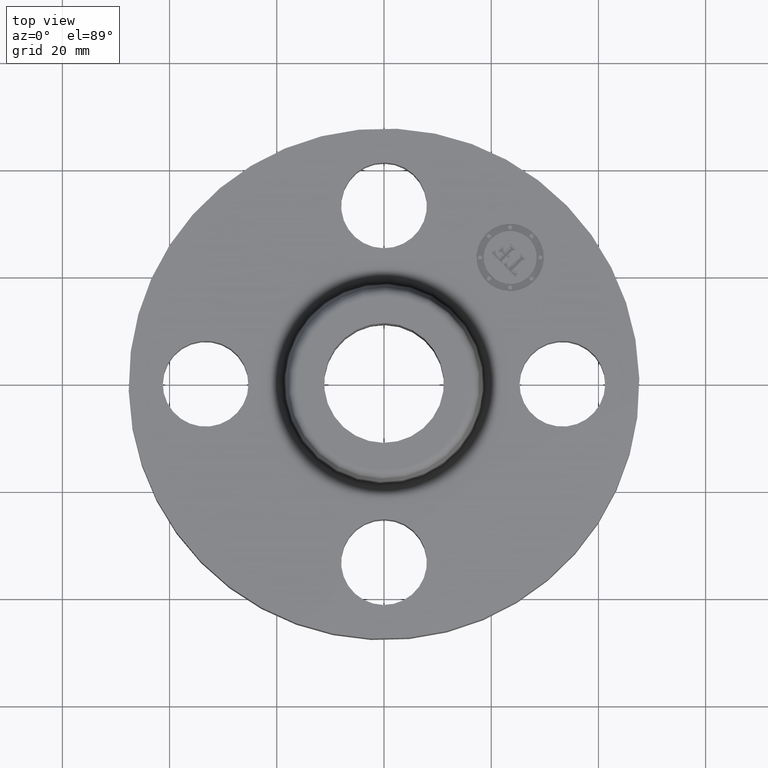
[diagram: clean part render]
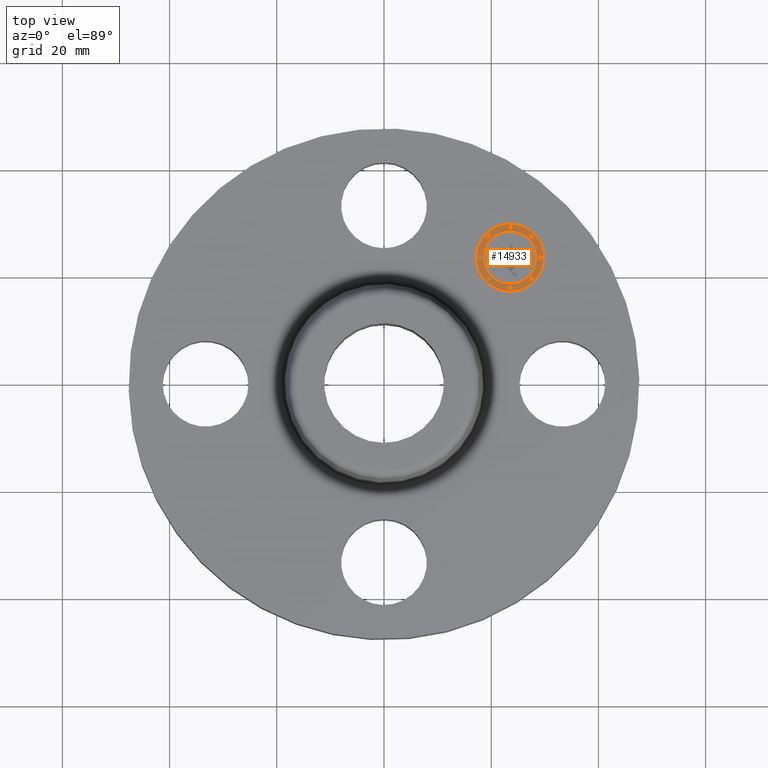
[diagram: same view with one face highlighted and labeled with its STEP entity id]
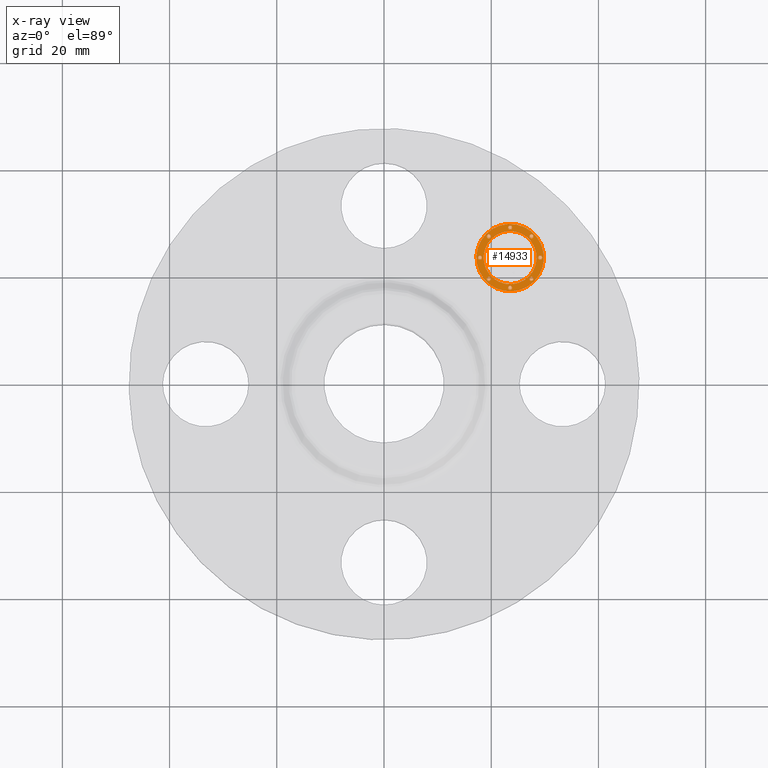
[diagram: x-ray of the same camera — body ghosted, the highlighted face saturated]
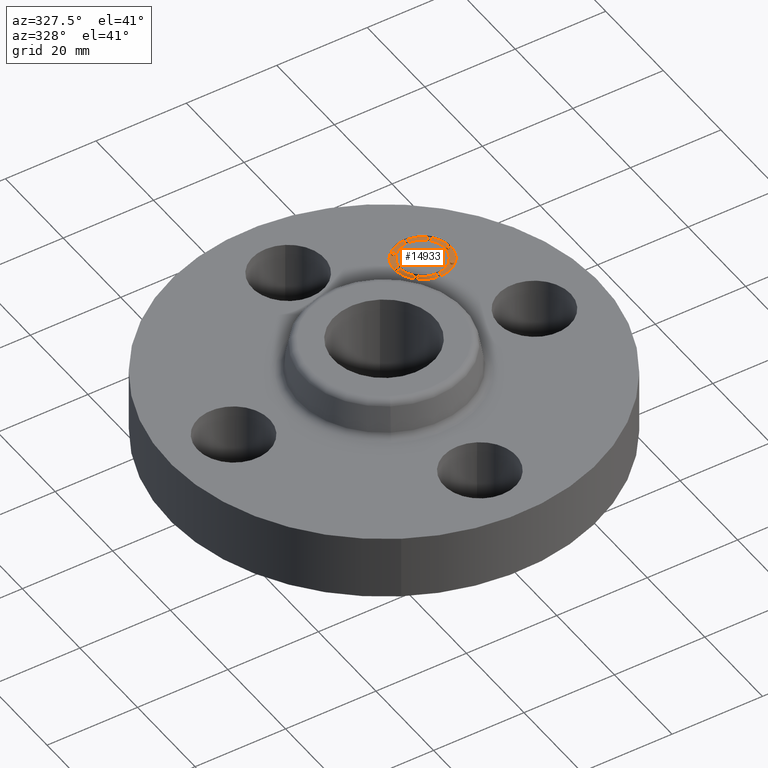
[diagram: same view with one face highlighted and labeled with its STEP entity id]
A machine part, top view. The second image highlights one B-rep face of the part: STEP entity #14933.
The next image is the same camera in x-ray: the body ghosted, the highlighted face saturated — about 0% of this face is hidden behind the body in this view.
A second angle (auxiliary view) of the same face is appended — the face is thin or edge-on in the first view.
In plain terms, the highlighted planar face has unit normal (0, -0, 1).
Its self-contained STEP definition (entity closure, byte-faithful):
#3584=AXIS2_PLACEMENT_3D('Plane Axis2P3D',#3581,#3582,#3583) ;
#14755=AXIS2_PLACEMENT_3D('Circle Axis2P3D',#14753,#14754,$) ;
#14764=AXIS2_PLACEMENT_3D('Circle Axis2P3D',#14762,#14763,$) ;
#14773=AXIS2_PLACEMENT_3D('Circle Axis2P3D',#14771,#14772,$) ;
#14782=AXIS2_PLACEMENT_3D('Circle Axis2P3D',#14780,#14781,$) ;
#14791=AXIS2_PLACEMENT_3D('Circle Axis2P3D',#14789,#14790,$) ;
#14800=AXIS2_PLACEMENT_3D('Circle Axis2P3D',#14798,#14799,$) ;
#14809=AXIS2_PLACEMENT_3D('Circle Axis2P3D',#14807,#14808,$) ;
#14818=AXIS2_PLACEMENT_3D('Circle Axis2P3D',#14816,#14817,$) ;
#14827=AXIS2_PLACEMENT_3D('Circle Axis2P3D',#14825,#14826,$) ;
#14836=AXIS2_PLACEMENT_3D('Circle Axis2P3D',#14834,#14835,$) ;
#14845=AXIS2_PLACEMENT_3D('Circle Axis2P3D',#14843,#14844,$) ;
#14854=AXIS2_PLACEMENT_3D('Circle Axis2P3D',#14852,#14853,$) ;
#14863=AXIS2_PLACEMENT_3D('Circle Axis2P3D',#14861,#14862,$) ;
#14872=AXIS2_PLACEMENT_3D('Circle Axis2P3D',#14870,#14871,$) ;
#14881=AXIS2_PLACEMENT_3D('Circle Axis2P3D',#14879,#14880,$) ;
#14890=AXIS2_PLACEMENT_3D('Circle Axis2P3D',#14888,#14889,$) ;
#14899=AXIS2_PLACEMENT_3D('Circle Axis2P3D',#14897,#14898,$) ;
#14908=AXIS2_PLACEMENT_3D('Circle Axis2P3D',#14906,#14907,$) ;
#14917=AXIS2_PLACEMENT_3D('Circle Axis2P3D',#14915,#14916,$) ;
#14926=AXIS2_PLACEMENT_3D('Circle Axis2P3D',#14924,#14925,$) ;
#3581=CARTESIAN_POINT('Axis2P3D Location',(0.,0.,0.545000000002)) ;
#14753=CARTESIAN_POINT('Axis2P3D Location',(0.926309883358,0.926309883358,0.545000000002)) ;
#14757=CARTESIAN_POINT('Vertex',(0.751300955014,1.1013188117,0.545000000002)) ;
#14759=CARTESIAN_POINT('Vertex',(1.1013188117,0.751300955014,0.545000000002)) ;
#14762=CARTESIAN_POINT('Axis2P3D Location',(0.926309883358,0.926309883358,0.545000000002)) ;
#14771=CARTESIAN_POINT('Axis2P3D Location',(0.926309883358,0.926309883358,0.545000000002)) ;
#14775=CARTESIAN_POINT('Vertex',(1.06419570569,0.788424061026,0.545000000002)) ;
#14777=CARTESIAN_POINT('Vertex',(0.788424061026,1.06419570569,0.545000000002)) ;
#14780=CARTESIAN_POINT('Axis2P3D Location',(0.926309883358,0.926309883358,0.545000000002)) ;
#14789=CARTESIAN_POINT('Axis2P3D Location',(0.76986250802,0.76986250802,0.545000000002)) ;
#14793=CARTESIAN_POINT('Vertex',(0.780469109738,0.759255906302,0.545000000002)) ;
#14795=CARTESIAN_POINT('Vertex',(0.759255906302,0.780469109738,0.545000000002)) ;
#14798=CARTESIAN_POINT('Axis2P3D Location',(0.76986250802,0.76986250802,0.545000000002)) ;
#14807=CARTESIAN_POINT('Axis2P3D Location',(0.76986250802,1.0827572587,0.545000000002)) ;
#14811=CARTESIAN_POINT('Vertex',(0.780469109738,1.07215065698,0.545000000002)) ;
#14813=CARTESIAN_POINT('Vertex',(0.759255906302,1.09336386041,0.545000000002)) ;
#14816=CARTESIAN_POINT('Axis2P3D Location',(0.76986250802,1.0827572587,0.545000000002)) ;
#14825=CARTESIAN_POINT('Axis2P3D Location',(0.705059883357,0.926309883358,0.545000000002)) ;
#14829=CARTESIAN_POINT('Vertex',(0.715666485075,0.91570328164,0.545000000002)) ;
#14831=CARTESIAN_POINT('Vertex',(0.694453281639,0.936916485076,0.545000000002)) ;
#14834=CARTESIAN_POINT('Axis2P3D Location',(0.705059883357,0.926309883358,0.545000000002)) ;
#14843=CARTESIAN_POINT('Axis2P3D Location',(1.0827572587,1.0827572587,0.545000000002)) ;
#14847=CARTESIAN_POINT('Vertex',(1.09336386041,1.07215065698,0.545000000002)) ;
#14849=CARTESIAN_POINT('Vertex',(1.07215065698,1.09336386041,0.545000000002)) ;
#14852=CARTESIAN_POINT('Axis2P3D Location',(1.0827572587,1.0827572587,0.545000000002)) ;
#14861=CARTESIAN_POINT('Axis2P3D Location',(0.926309883358,1.14755988336,0.545000000002)) ;
#14865=CARTESIAN_POINT('Vertex',(0.936916485076,1.13695328164,0.545000000002)) ;
#14867=CARTESIAN_POINT('Vertex',(0.91570328164,1.15816648508,0.545000000002)) ;
#14870=CARTESIAN_POINT('Axis2P3D Location',(0.926309883358,1.14755988336,0.545000000002)) ;
#14879=CARTESIAN_POINT('Axis2P3D Location',(1.0827572587,0.76986250802,0.545000000002)) ;
#14883=CARTESIAN_POINT('Vertex',(1.07215065698,0.780469109738,0.545000000002)) ;
#14885=CARTESIAN_POINT('Vertex',(1.09336386041,0.759255906302,0.545000000002)) ;
#14888=CARTESIAN_POINT('Axis2P3D Location',(1.0827572587,0.76986250802,0.545000000002)) ;
#14897=CARTESIAN_POINT('Axis2P3D Location',(0.926309883358,0.705059883357,0.545000000002)) ;
#14901=CARTESIAN_POINT('Vertex',(0.91570328164,0.715666485075,0.545000000002)) ;
#14903=CARTESIAN_POINT('Vertex',(0.936916485076,0.694453281639,0.545000000002)) ;
#14906=CARTESIAN_POINT('Axis2P3D Location',(0.926309883358,0.705059883357,0.545000000002)) ;
#14915=CARTESIAN_POINT('Axis2P3D Location',(1.14755988336,0.926309883358,0.545000000002)) ;
#14919=CARTESIAN_POINT('Vertex',(1.13695328164,0.936916485076,0.545000000002)) ;
#14921=CARTESIAN_POINT('Vertex',(1.15816648508,0.91570328164,0.545000000002)) ;
#14924=CARTESIAN_POINT('Axis2P3D Location',(1.14755988336,0.926309883358,0.545000000002)) ;
#3582=DIRECTION('Axis2P3D Direction',(0.,-0.,0.0393700787402)) ;
#3583=DIRECTION('Axis2P3D XDirection',(0.027838849653,0.027838849653,0.)) ;
#14754=DIRECTION('Axis2P3D Direction',(0.,-0.,0.0393700787402)) ;
#14763=DIRECTION('Axis2P3D Direction',(0.,-0.,0.0393700787402)) ;
#14772=DIRECTION('Axis2P3D Direction',(0.,-0.,0.0393700787402)) ;
#14781=DIRECTION('Axis2P3D Direction',(0.,-0.,0.0393700787402)) ;
#14790=DIRECTION('Axis2P3D Direction',(0.,-0.,0.0393700787402)) ;
#14799=DIRECTION('Axis2P3D Direction',(0.,-0.,0.0393700787402)) ;
#14808=DIRECTION('Axis2P3D Direction',(0.,-0.,0.0393700787402)) ;
#14817=DIRECTION('Axis2P3D Direction',(0.,-0.,0.0393700787402)) ;
#14826=DIRECTION('Axis2P3D Direction',(0.,-0.,0.0393700787402)) ;
#14835=DIRECTION('Axis2P3D Direction',(0.,-0.,0.0393700787402)) ;
#14844=DIRECTION('Axis2P3D Direction',(0.,-0.,0.0393700787402)) ;
#14853=DIRECTION('Axis2P3D Direction',(0.,-0.,0.0393700787402)) ;
#14862=DIRECTION('Axis2P3D Direction',(0.,-0.,0.0393700787402)) ;
#14871=DIRECTION('Axis2P3D Direction',(0.,-0.,0.0393700787402)) ;
#14880=DIRECTION('Axis2P3D Direction',(0.,-0.,0.0393700787402)) ;
#14889=DIRECTION('Axis2P3D Direction',(0.,-0.,0.0393700787402)) ;
#14898=DIRECTION('Axis2P3D Direction',(0.,-0.,0.0393700787402)) ;
#14907=DIRECTION('Axis2P3D Direction',(0.,-0.,0.0393700787402)) ;
#14916=DIRECTION('Axis2P3D Direction',(0.,-0.,0.0393700787402)) ;
#14925=DIRECTION('Axis2P3D Direction',(0.,-0.,0.0393700787402)) ;
#14768=ORIENTED_EDGE('',*,*,#14761,.T.) ;
#14769=ORIENTED_EDGE('',*,*,#14766,.T.) ;
#14786=ORIENTED_EDGE('',*,*,#14779,.F.) ;
#14787=ORIENTED_EDGE('',*,*,#14784,.F.) ;
#14804=ORIENTED_EDGE('',*,*,#14797,.F.) ;
#14805=ORIENTED_EDGE('',*,*,#14802,.F.) ;
#14822=ORIENTED_EDGE('',*,*,#14815,.F.) ;
#14823=ORIENTED_EDGE('',*,*,#14820,.F.) ;
#14840=ORIENTED_EDGE('',*,*,#14833,.F.) ;
#14841=ORIENTED_EDGE('',*,*,#14838,.F.) ;
#14858=ORIENTED_EDGE('',*,*,#14851,.F.) ;
#14859=ORIENTED_EDGE('',*,*,#14856,.F.) ;
#14876=ORIENTED_EDGE('',*,*,#14869,.F.) ;
#14877=ORIENTED_EDGE('',*,*,#14874,.F.) ;
#14894=ORIENTED_EDGE('',*,*,#14887,.F.) ;
#14895=ORIENTED_EDGE('',*,*,#14892,.F.) ;
#14912=ORIENTED_EDGE('',*,*,#14905,.F.) ;
#14913=ORIENTED_EDGE('',*,*,#14910,.F.) ;
#14930=ORIENTED_EDGE('',*,*,#14923,.F.) ;
#14931=ORIENTED_EDGE('',*,*,#14928,.F.) ;
#14788=FACE_BOUND('',#14785,.T.) ;
#14806=FACE_BOUND('',#14803,.T.) ;
#14824=FACE_BOUND('',#14821,.T.) ;
#14842=FACE_BOUND('',#14839,.T.) ;
#14860=FACE_BOUND('',#14857,.T.) ;
#14878=FACE_BOUND('',#14875,.T.) ;
#14896=FACE_BOUND('',#14893,.T.) ;
#14914=FACE_BOUND('',#14911,.T.) ;
#14932=FACE_BOUND('',#14929,.T.) ;
#14933=ADVANCED_FACE('PartBody',(#14770,#14788,#14806,#14824,#14842,#14860,#14878,#14896,#14914,#14932),#3585,.T.) ;
#14756=CIRCLE('generated circle',#14755,0.247500000001) ;
#14765=CIRCLE('generated circle',#14764,0.247500000001) ;
#14774=CIRCLE('generated circle',#14773,0.195000000001) ;
#14783=CIRCLE('generated circle',#14782,0.195000000001) ;
#14792=CIRCLE('generated circle',#14791,0.0150000000001) ;
#14801=CIRCLE('generated circle',#14800,0.0150000000001) ;
#14810=CIRCLE('generated circle',#14809,0.0150000000001) ;
#14819=CIRCLE('generated circle',#14818,0.0150000000001) ;
#14828=CIRCLE('generated circle',#14827,0.0150000000001) ;
#14837=CIRCLE('generated circle',#14836,0.0150000000001) ;
#14846=CIRCLE('generated circle',#14845,0.0150000000001) ;
#14855=CIRCLE('generated circle',#14854,0.0150000000001) ;
#14864=CIRCLE('generated circle',#14863,0.0150000000001) ;
#14873=CIRCLE('generated circle',#14872,0.0150000000001) ;
#14882=CIRCLE('generated circle',#14881,0.0150000000001) ;
#14891=CIRCLE('generated circle',#14890,0.0150000000001) ;
#14900=CIRCLE('generated circle',#14899,0.0150000000001) ;
#14909=CIRCLE('generated circle',#14908,0.0150000000001) ;
#14918=CIRCLE('generated circle',#14917,0.0150000000001) ;
#14927=CIRCLE('generated circle',#14926,0.0150000000001) ;
#14761=EDGE_CURVE('',#14758,#14760,#14756,.T.) ;
#14766=EDGE_CURVE('',#14760,#14758,#14765,.T.) ;
#14779=EDGE_CURVE('',#14776,#14778,#14774,.T.) ;
#14784=EDGE_CURVE('',#14778,#14776,#14783,.T.) ;
#14797=EDGE_CURVE('',#14794,#14796,#14792,.T.) ;
#14802=EDGE_CURVE('',#14796,#14794,#14801,.T.) ;
#14815=EDGE_CURVE('',#14812,#14814,#14810,.T.) ;
#14820=EDGE_CURVE('',#14814,#14812,#14819,.T.) ;
#14833=EDGE_CURVE('',#14830,#14832,#14828,.T.) ;
#14838=EDGE_CURVE('',#14832,#14830,#14837,.T.) ;
#14851=EDGE_CURVE('',#14848,#14850,#14846,.T.) ;
#14856=EDGE_CURVE('',#14850,#14848,#14855,.T.) ;
#14869=EDGE_CURVE('',#14866,#14868,#14864,.T.) ;
#14874=EDGE_CURVE('',#14868,#14866,#14873,.T.) ;
#14887=EDGE_CURVE('',#14884,#14886,#14882,.T.) ;
#14892=EDGE_CURVE('',#14886,#14884,#14891,.T.) ;
#14905=EDGE_CURVE('',#14902,#14904,#14900,.T.) ;
#14910=EDGE_CURVE('',#14904,#14902,#14909,.T.) ;
#14923=EDGE_CURVE('',#14920,#14922,#14918,.T.) ;
#14928=EDGE_CURVE('',#14922,#14920,#14927,.T.) ;
#14767=EDGE_LOOP('',(#14768,#14769)) ;
#14785=EDGE_LOOP('',(#14786,#14787)) ;
#14803=EDGE_LOOP('',(#14804,#14805)) ;
#14821=EDGE_LOOP('',(#14822,#14823)) ;
#14839=EDGE_LOOP('',(#14840,#14841)) ;
#14857=EDGE_LOOP('',(#14858,#14859)) ;
#14875=EDGE_LOOP('',(#14876,#14877)) ;
#14893=EDGE_LOOP('',(#14894,#14895)) ;
#14911=EDGE_LOOP('',(#14912,#14913)) ;
#14929=EDGE_LOOP('',(#14930,#14931)) ;
#14770=FACE_OUTER_BOUND('',#14767,.T.) ;
#3585=PLANE('',#3584) ;
#14758=VERTEX_POINT('',#14757) ;
#14760=VERTEX_POINT('',#14759) ;
#14776=VERTEX_POINT('',#14775) ;
#14778=VERTEX_POINT('',#14777) ;
#14794=VERTEX_POINT('',#14793) ;
#14796=VERTEX_POINT('',#14795) ;
#14812=VERTEX_POINT('',#14811) ;
#14814=VERTEX_POINT('',#14813) ;
#14830=VERTEX_POINT('',#14829) ;
#14832=VERTEX_POINT('',#14831) ;
#14848=VERTEX_POINT('',#14847) ;
#14850=VERTEX_POINT('',#14849) ;
#14866=VERTEX_POINT('',#14865) ;
#14868=VERTEX_POINT('',#14867) ;
#14884=VERTEX_POINT('',#14883) ;
#14886=VERTEX_POINT('',#14885) ;
#14902=VERTEX_POINT('',#14901) ;
#14904=VERTEX_POINT('',#14903) ;
#14920=VERTEX_POINT('',#14919) ;
#14922=VERTEX_POINT('',#14921) ;